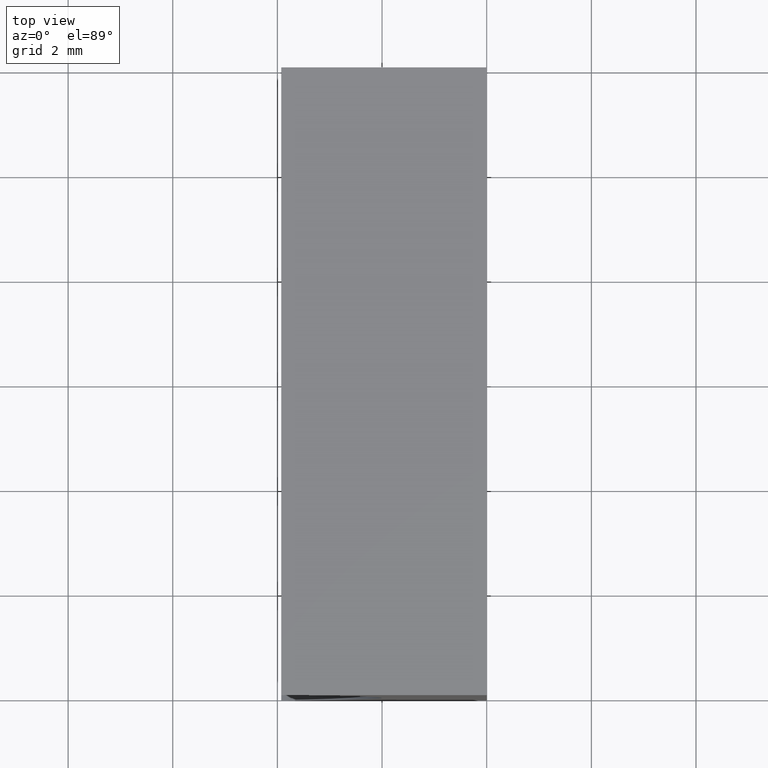
[diagram: clean part render]
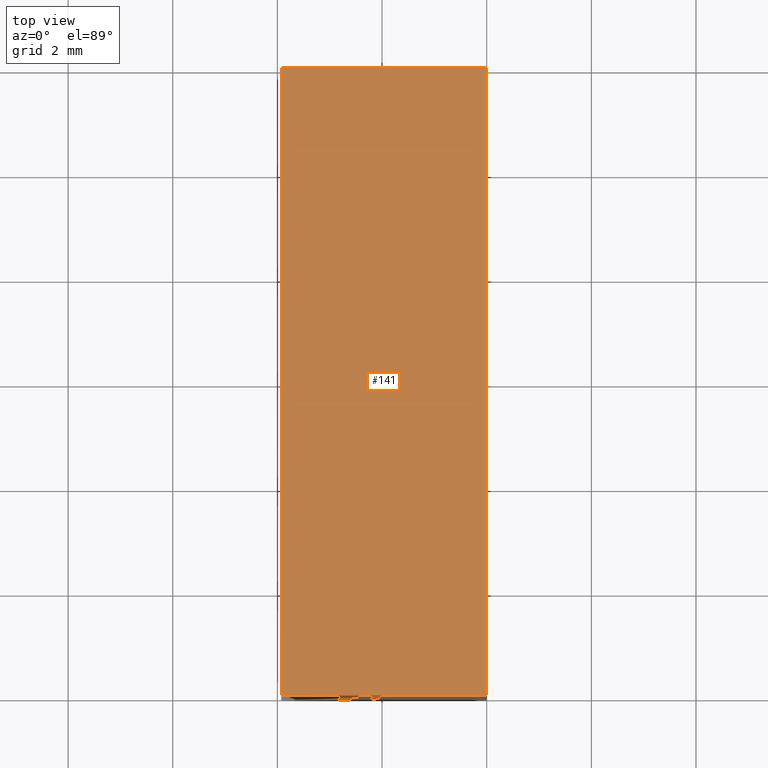
[diagram: same view with one face highlighted and labeled with its STEP entity id]
A machine part, top view. The second image highlights one B-rep face of the part: STEP entity #141.
In plain terms, the highlighted planar face has unit normal (0, 0, -1).
Its self-contained STEP definition (entity closure, byte-faithful):
#2 = CARTESIAN_POINT ( 'NONE',  ( -3.925227291513251800, 0.0000000000000000000, 5.999999999999998200 ) ) ;
#6 = LINE ( 'NONE', #115, #55 ) ;
#12 = ORIENTED_EDGE ( 'NONE', *, *, #136, .T. ) ;
#13 = DIRECTION ( 'NONE',  ( -0.0000000000000000000, -1.000000000000000000, -0.0000000000000000000 ) ) ;
#21 = VERTEX_POINT ( 'NONE', #2 ) ;
#38 = CARTESIAN_POINT ( 'NONE',  ( 0.0000000000000000000, 12.00000000000000000, 6.000000000000000000 ) ) ;
#43 = PLANE ( 'NONE',  #67 ) ;
#44 = DIRECTION ( 'NONE',  ( -0.0000000000000000000, -1.000000000000000000, -0.0000000000000000000 ) ) ;
#47 = EDGE_CURVE ( 'NONE', #130, #188, #122, .T. ) ;
#53 = EDGE_CURVE ( 'NONE', #61, #21, #109, .T. ) ;
#55 = VECTOR ( 'NONE', #99, 1000.000000000000000 ) ;
#56 = ORIENTED_EDGE ( 'NONE', *, *, #172, .F. ) ;
#57 = EDGE_LOOP ( 'NONE', ( #12, #96, #56, #179 ) ) ;
#61 = VERTEX_POINT ( 'NONE', #202 ) ;
#67 = AXIS2_PLACEMENT_3D ( 'NONE', #167, #75, #143 ) ;
#75 = DIRECTION ( 'NONE',  ( 4.419421722985211700E-016, 0.0000000000000000000, -1.000000000000000000 ) ) ;
#81 = CARTESIAN_POINT ( 'NONE',  ( 0.0000000000000000000, 12.00000000000000000, 6.000000000000000000 ) ) ;
#96 = ORIENTED_EDGE ( 'NONE', *, *, #47, .F. ) ;
#99 = DIRECTION ( 'NONE',  ( 1.000000000000000000, -0.0000000000000000000, 4.419421722985211700E-016 ) ) ;
#100 = CARTESIAN_POINT ( 'NONE',  ( -3.925227291513251800, 12.00000000000000000, 5.999999999999998200 ) ) ;
#108 = CARTESIAN_POINT ( 'NONE',  ( 0.0000000000000000000, 12.00000000000000000, 6.000000000000000000 ) ) ;
#109 = LINE ( 'NONE', #100, #173 ) ;
#112 = VECTOR ( 'NONE', #119, 1000.000000000000000 ) ;
#115 = CARTESIAN_POINT ( 'NONE',  ( 0.0000000000000000000, 0.0000000000000000000, 6.000000000000000000 ) ) ;
#119 = DIRECTION ( 'NONE',  ( 1.000000000000000000, -0.0000000000000000000, 4.419421722985211700E-016 ) ) ;
#122 = LINE ( 'NONE', #38, #177 ) ;
#127 = LINE ( 'NONE', #81, #112 ) ;
#130 = VERTEX_POINT ( 'NONE', #108 ) ;
#136 = EDGE_CURVE ( 'NONE', #21, #188, #6, .T. ) ;
#141 = ADVANCED_FACE ( 'NONE', ( #193 ), #43, .F. ) ;
#143 = DIRECTION ( 'NONE',  ( -1.000000000000000000, 0.0000000000000000000, -4.419421722985211700E-016 ) ) ;
#167 = CARTESIAN_POINT ( 'NONE',  ( 0.0000000000000000000, 12.00000000000000000, 6.000000000000000000 ) ) ;
#172 = EDGE_CURVE ( 'NONE', #61, #130, #127, .T. ) ;
#173 = VECTOR ( 'NONE', #44, 1000.000000000000000 ) ;
#177 = VECTOR ( 'NONE', #13, 1000.000000000000000 ) ;
#179 = ORIENTED_EDGE ( 'NONE', *, *, #53, .T. ) ;
#180 = CARTESIAN_POINT ( 'NONE',  ( 0.0000000000000000000, 0.0000000000000000000, 6.000000000000000000 ) ) ;
#188 = VERTEX_POINT ( 'NONE', #180 ) ;
#193 = FACE_OUTER_BOUND ( 'NONE', #57, .T. ) ;
#202 = CARTESIAN_POINT ( 'NONE',  ( -3.925227291513251800, 12.00000000000000000, 5.999999999999998200 ) ) ;